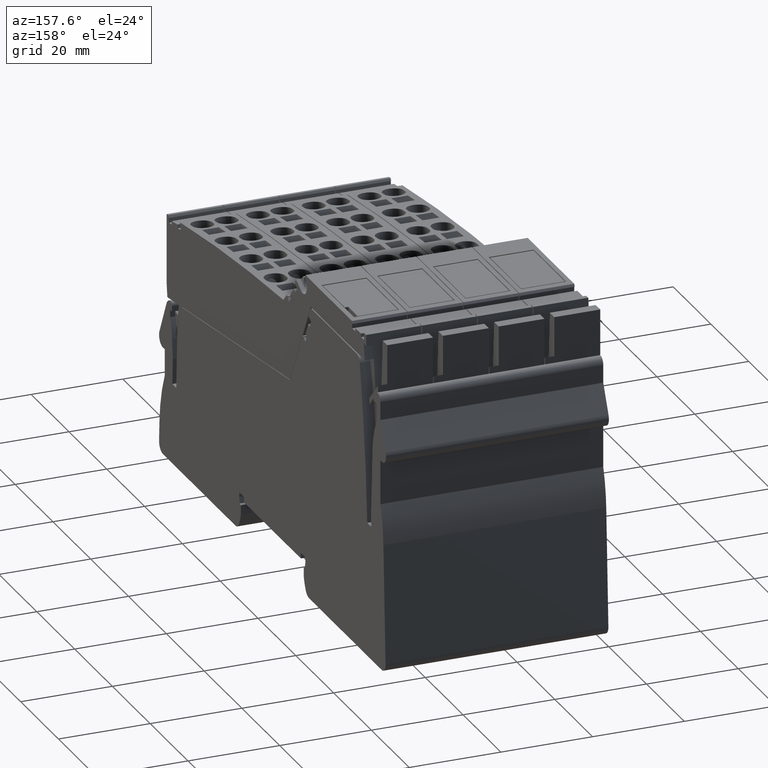
[diagram: clean part render]
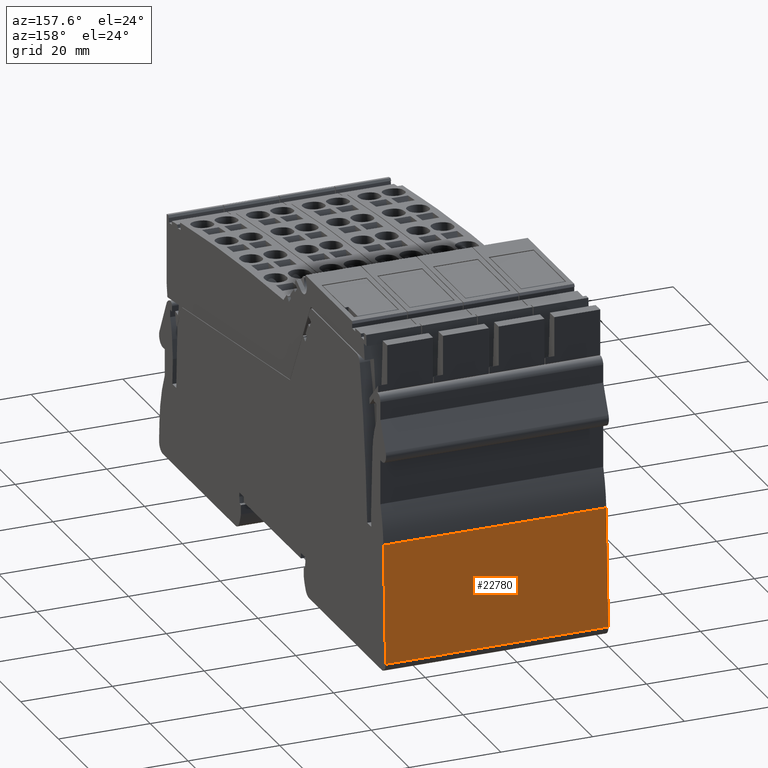
[diagram: same view with one face highlighted and labeled with its STEP entity id]
A machine part, auxiliary view. The second image highlights one B-rep face of the part: STEP entity #22780.
In plain terms, the highlighted planar face has unit normal (0, -0.999, -0.0436).
Its self-contained STEP definition (entity closure, byte-faithful):
#1290=CARTESIAN_POINT('',(295.310352033684,-35.0513494374696,36.45));
#1300=VERTEX_POINT('',#1290);
#1330=CARTESIAN_POINT('',(295.376265619679,-36.5610187575392,36.45));
#1340=DIRECTION('',(-0.0436193873653252,0.999048221581858,0.));
#1350=VECTOR('',#1340,1.);
#1360=LINE('',#1330,#1350);
#1370=CARTESIAN_POINT('',(296.437489395879,-60.8670393220634,36.45));
#1380=VERTEX_POINT('',#1370);
#1390=EDGE_CURVE('',#1380,#1300,#1360,.T.);
#9360=CARTESIAN_POINT('',(296.437489395879,-60.8670393220635,-12.15));
#9370=VERTEX_POINT('',#9360);
#9400=CARTESIAN_POINT('',(295.376265619679,-36.5610187575392,-12.15));
#9410=DIRECTION('',(-0.0436193873653252,0.999048221581858,0.));
#9420=VECTOR('',#9410,1.);
#9430=LINE('',#9400,#9420);
#9440=CARTESIAN_POINT('',(295.310352033684,-35.0513494374696,-12.15));
#9450=VERTEX_POINT('',#9440);
#9460=EDGE_CURVE('',#9370,#9450,#9430,.T.);
#22460=CARTESIAN_POINT('',(296.437489395879,-60.8670393220633,
6.14999999999999));
#22470=DIRECTION('',(0.,0.,1.));
#22480=VECTOR('',#22470,1.);
#22490=LINE('',#22460,#22480);
#22500=EDGE_CURVE('',#9370,#1380,#22490,.T.);
#22620=CARTESIAN_POINT('',(296.437489395879,-60.8670393220633,
6.14999999999999));
#22630=DIRECTION('',(-0.999048221581858,-0.0436193873653252,0.));
#22640=DIRECTION('',(0.0436193873653252,-0.999048221581858,0.));
#22650=AXIS2_PLACEMENT_3D('',#22620,#22630,#22640);
#22660=PLANE('',#22650);
#22670=ORIENTED_EDGE('',*,*,#9460,.T.);
#22680=ORIENTED_EDGE('',*,*,#22500,.F.);
#22690=ORIENTED_EDGE('',*,*,#1390,.F.);
#22700=CARTESIAN_POINT('',(295.310352033684,-35.0513494374696,
6.14999999999999));
#22710=DIRECTION('',(0.,0.,1.));
#22720=VECTOR('',#22710,1.);
#22730=LINE('',#22700,#22720);
#22740=EDGE_CURVE('',#9450,#1300,#22730,.T.);
#22750=ORIENTED_EDGE('',*,*,#22740,.T.);
#22760=EDGE_LOOP('',(#22750,#22690,#22680,#22670));
#22770=FACE_OUTER_BOUND('',#22760,.T.);
#22780=ADVANCED_FACE('',(#22770),#22660,.F.);